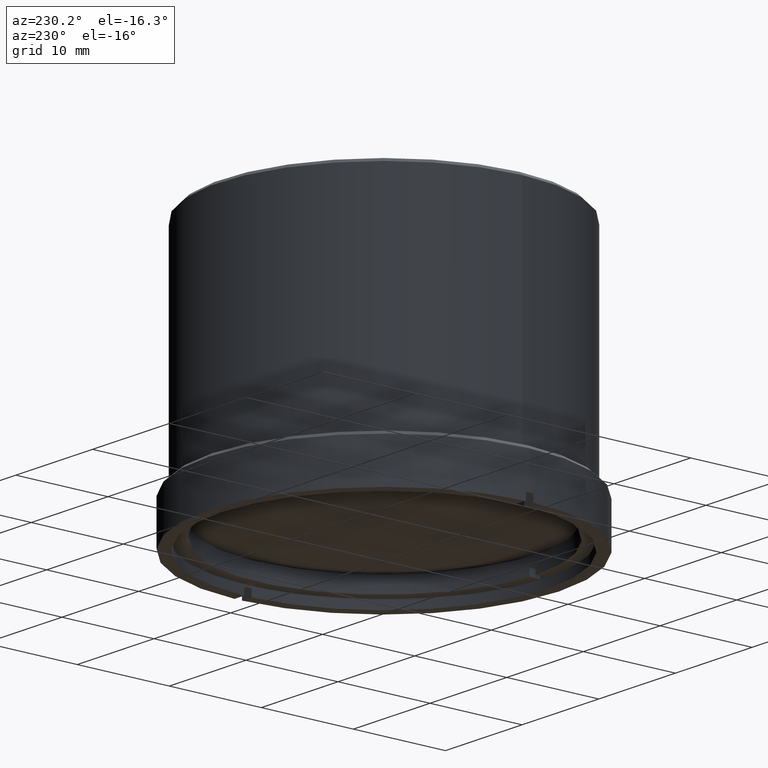
[diagram: clean part render]
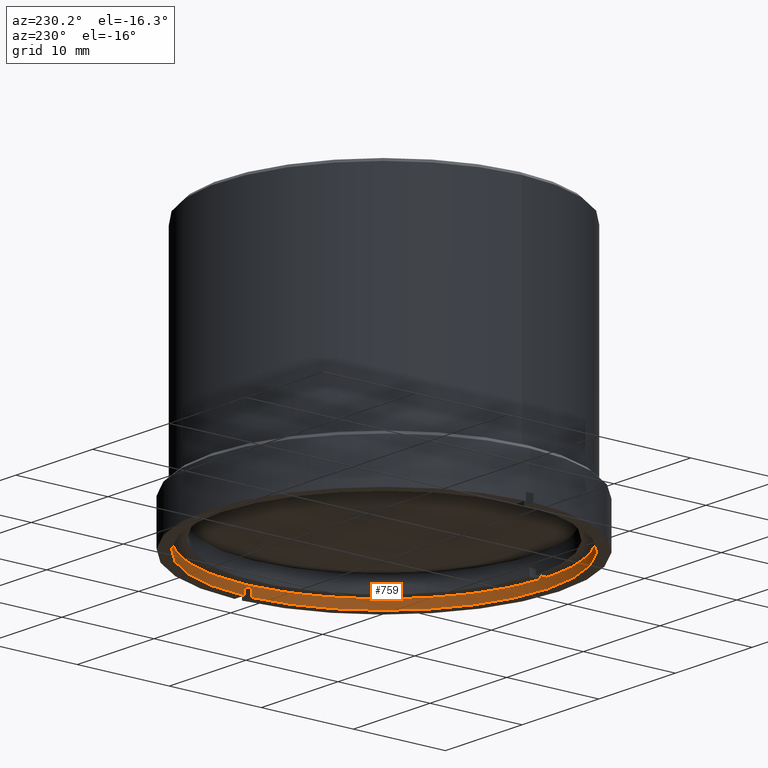
[diagram: same view with one face highlighted and labeled with its STEP entity id]
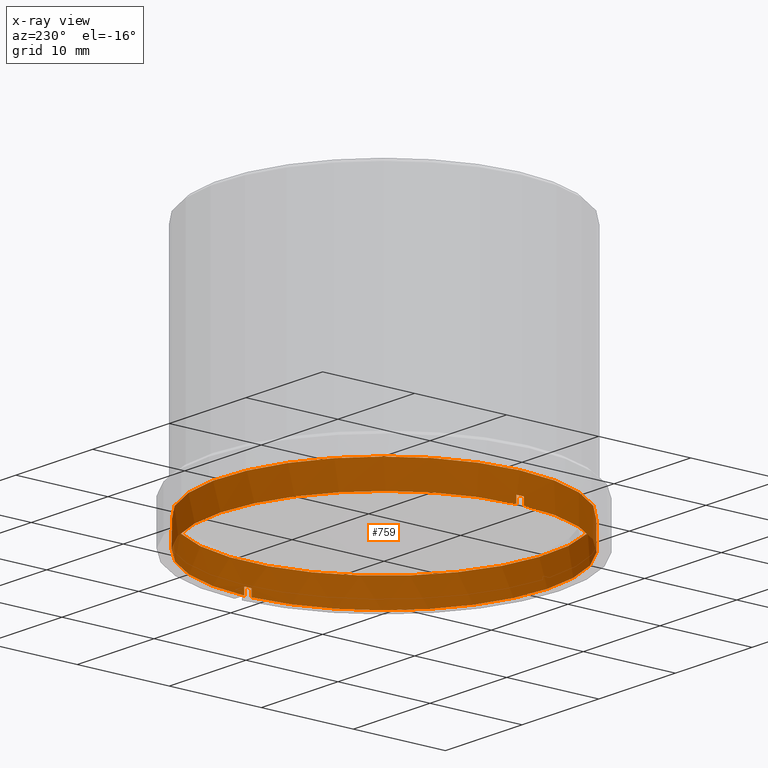
[diagram: x-ray of the same camera — body ghosted, the highlighted face saturated]
A machine part, auxiliary view. The second image highlights one B-rep face of the part: STEP entity #759.
The next image is the same camera in x-ray: the body ghosted, the highlighted face saturated — about 0% of this face is hidden behind the body in this view.
In plain terms, the highlighted cylindrical surface (bore or boss wall) has radius 17.75 mm, axis along (-0, -0, -1).
Its self-contained STEP definition (entity closure, byte-faithful):
#77 = LINE ( 'NONE', #511, #456 ) ;
#88 = VERTEX_POINT ( 'NONE', #1168 ) ;
#101 = VECTOR ( 'NONE', #1105, 1000.000000000000000 ) ;
#117 = LINE ( 'NONE', #2663, #2692 ) ;
#166 = DIRECTION ( 'NONE',  ( -1.000000000000000000, 0.000000000000000000, 0.000000000000000000 ) ) ;
#180 = CARTESIAN_POINT ( 'NONE',  ( -17.74549238539184515, -0.4000000000000005218, 210.6772689990073673 ) ) ;
#201 = CYLINDRICAL_SURFACE ( 'NONE', #1530, 17.75000000000000355 ) ;
#246 = EDGE_CURVE ( 'NONE', #1249, #2061, #591, .T. ) ;
#261 = EDGE_CURVE ( 'NONE', #388, #388, #954, .T. ) ;
#281 = AXIS2_PLACEMENT_3D ( 'NONE', #2049, #1223, #1636 ) ;
#334 = EDGE_CURVE ( 'NONE', #88, #1249, #77, .T. ) ;
#388 = VERTEX_POINT ( 'NONE', #1732 ) ;
#408 = FACE_OUTER_BOUND ( 'NONE', #1447, .T. ) ;
#456 = VECTOR ( 'NONE', #2277, 1000.000000000000000 ) ;
#504 = CIRCLE ( 'NONE', #681, 17.75000000000000355 ) ;
#511 = CARTESIAN_POINT ( 'NONE',  ( -17.74549238539184870, 0.4000000000000001887, 171.6984302906483038 ) ) ;
#554 = DIRECTION ( 'NONE',  ( -1.000000000000000000, 0.000000000000000000, 0.000000000000000000 ) ) ;
#555 = EDGE_CURVE ( 'NONE', #1913, #88, #2111, .T. ) ;
#589 = CARTESIAN_POINT ( 'NONE',  ( 0.000000000000000000, 0.000000000000000000, 211.4772689990073786 ) ) ;
#591 = CIRCLE ( 'NONE', #2157, 17.75000000000000355 ) ;
#621 = EDGE_CURVE ( 'NONE', #2464, #2061, #117, .T. ) ;
#629 = ORIENTED_EDGE ( 'NONE', *, *, #2027, .F. ) ;
#681 = AXIS2_PLACEMENT_3D ( 'NONE', #2222, #1822, #1142 ) ;
#714 = ORIENTED_EDGE ( 'NONE', *, *, #334, .F. ) ;
#750 = DIRECTION ( 'NONE',  ( -0.000000000000000000, 0.000000000000000000, 1.000000000000000000 ) ) ;
#759 = ADVANCED_FACE ( 'NONE', ( #408, #2102 ), #201, .F. ) ;
#792 = ORIENTED_EDGE ( 'NONE', *, *, #555, .F. ) ;
#805 = DIRECTION ( 'NONE',  ( -1.000000000000000000, 0.000000000000000000, 0.000000000000000000 ) ) ;
#814 = DIRECTION ( 'NONE',  ( 0.000000000000000000, 0.000000000000000000, 1.000000000000000000 ) ) ;
#817 = CARTESIAN_POINT ( 'NONE',  ( 0.000000000000000000, 0.000000000000000000, 171.6984302906483038 ) ) ;
#818 = CIRCLE ( 'NONE', #281, 17.75000000000000355 ) ;
#832 = DIRECTION ( 'NONE',  ( -0.000000000000000000, -0.000000000000000000, -1.000000000000000000 ) ) ;
#858 = ORIENTED_EDGE ( 'NONE', *, *, #1748, .F. ) ;
#954 = CIRCLE ( 'NONE', #1303, 17.75000000000000355 ) ;
#1018 = CARTESIAN_POINT ( 'NONE',  ( -17.74549238539184515, -0.3999999999999999667, 211.4772689990073786 ) ) ;
#1039 = AXIS2_PLACEMENT_3D ( 'NONE', #1367, #1413, #554 ) ;
#1054 = DIRECTION ( 'NONE',  ( -1.000000000000000000, 0.000000000000000000, 0.000000000000000000 ) ) ;
#1073 = CARTESIAN_POINT ( 'NONE',  ( 17.74549238539184515, 0.4000000000000005218, 210.6772689990073673 ) ) ;
#1105 = DIRECTION ( 'NONE',  ( 0.000000000000000000, 0.000000000000000000, 1.000000000000000000 ) ) ;
#1120 = CARTESIAN_POINT ( 'NONE',  ( 17.74549238539184870, -0.3999999999999961919, 211.4772689990073786 ) ) ;
#1129 = ORIENTED_EDGE ( 'NONE', *, *, #621, .T. ) ;
#1142 = DIRECTION ( 'NONE',  ( -1.000000000000000000, 3.197442310920450205E-14, 0.000000000000000000 ) ) ;
#1168 = CARTESIAN_POINT ( 'NONE',  ( -17.74549238539185225, 0.4000000000000001332, 210.6772689990073673 ) ) ;
#1222 = CARTESIAN_POINT ( 'NONE',  ( 0.000000000000000000, 0.000000000000000000, 213.6772689990073673 ) ) ;
#1223 = DIRECTION ( 'NONE',  ( 0.000000000000000000, 0.000000000000000000, 1.000000000000000000 ) ) ;
#1249 = VERTEX_POINT ( 'NONE', #1781 ) ;
#1303 = AXIS2_PLACEMENT_3D ( 'NONE', #1222, #832, #166 ) ;
#1308 = LINE ( 'NONE', #2197, #101 ) ;
#1353 = VECTOR ( 'NONE', #814, 1000.000000000000000 ) ;
#1367 = CARTESIAN_POINT ( 'NONE',  ( 0.000000000000000000, 0.000000000000000000, 210.6772689990073673 ) ) ;
#1413 = DIRECTION ( 'NONE',  ( 0.000000000000000000, 0.000000000000000000, 1.000000000000000000 ) ) ;
#1416 = EDGE_CURVE ( 'NONE', #2464, #2629, #818, .T. ) ;
#1432 = DIRECTION ( 'NONE',  ( 0.000000000000000000, 0.000000000000000000, 1.000000000000000000 ) ) ;
#1437 = ORIENTED_EDGE ( 'NONE', *, *, #246, .F. ) ;
#1445 = LINE ( 'NONE', #2705, #1353 ) ;
#1447 = EDGE_LOOP ( 'NONE', ( #1632 ) ) ;
#1511 = EDGE_CURVE ( 'NONE', #1913, #1668, #1445, .T. ) ;
#1530 = AXIS2_PLACEMENT_3D ( 'NONE', #817, #2119, #805 ) ;
#1632 = ORIENTED_EDGE ( 'NONE', *, *, #261, .F. ) ;
#1636 = DIRECTION ( 'NONE',  ( -1.000000000000000000, 0.000000000000000000, 0.000000000000000000 ) ) ;
#1668 = VERTEX_POINT ( 'NONE', #2460 ) ;
#1732 = CARTESIAN_POINT ( 'NONE',  ( -17.75000000000000355, 0.000000000000000000, 213.6772689990073673 ) ) ;
#1748 = EDGE_CURVE ( 'NONE', #1965, #1668, #504, .T. ) ;
#1781 = CARTESIAN_POINT ( 'NONE',  ( -17.74549238539184870, 0.4000000000000001332, 211.4772689990073786 ) ) ;
#1822 = DIRECTION ( 'NONE',  ( 0.000000000000000000, 0.000000000000000000, 1.000000000000000000 ) ) ;
#1845 = EDGE_LOOP ( 'NONE', ( #1129, #1437, #714, #792, #1938, #858, #629, #2675 ) ) ;
#1913 = VERTEX_POINT ( 'NONE', #1073 ) ;
#1938 = ORIENTED_EDGE ( 'NONE', *, *, #1511, .T. ) ;
#1965 = VERTEX_POINT ( 'NONE', #1120 ) ;
#2027 = EDGE_CURVE ( 'NONE', #2629, #1965, #1308, .T. ) ;
#2049 = CARTESIAN_POINT ( 'NONE',  ( 0.000000000000000000, 0.000000000000000000, 210.6772689990073673 ) ) ;
#2061 = VERTEX_POINT ( 'NONE', #1018 ) ;
#2102 = FACE_OUTER_BOUND ( 'NONE', #1845, .T. ) ;
#2111 = CIRCLE ( 'NONE', #1039, 17.75000000000000355 ) ;
#2119 = DIRECTION ( 'NONE',  ( -0.000000000000000000, -0.000000000000000000, -1.000000000000000000 ) ) ;
#2157 = AXIS2_PLACEMENT_3D ( 'NONE', #589, #1432, #1054 ) ;
#2197 = CARTESIAN_POINT ( 'NONE',  ( 17.74549238539184870, -0.3999999999999955813, 171.6984302906483038 ) ) ;
#2222 = CARTESIAN_POINT ( 'NONE',  ( 0.000000000000000000, 0.000000000000000000, 211.4772689990073786 ) ) ;
#2233 = CARTESIAN_POINT ( 'NONE',  ( 17.74549238539184870, -0.3999999999999978018, 210.6772689990073673 ) ) ;
#2277 = DIRECTION ( 'NONE',  ( 0.000000000000000000, 0.000000000000000000, 1.000000000000000000 ) ) ;
#2460 = CARTESIAN_POINT ( 'NONE',  ( 17.74549238539184515, 0.4000000000000000222, 211.4772689990073786 ) ) ;
#2464 = VERTEX_POINT ( 'NONE', #180 ) ;
#2629 = VERTEX_POINT ( 'NONE', #2233 ) ;
#2663 = CARTESIAN_POINT ( 'NONE',  ( -17.74549238539183804, -0.3999999999999999667, 211.4772689990073786 ) ) ;
#2675 = ORIENTED_EDGE ( 'NONE', *, *, #1416, .F. ) ;
#2692 = VECTOR ( 'NONE', #750, 1000.000000000000000 ) ;
#2705 = CARTESIAN_POINT ( 'NONE',  ( 17.74549238539184515, 0.4000000000000000222, 211.4772689990073786 ) ) ;